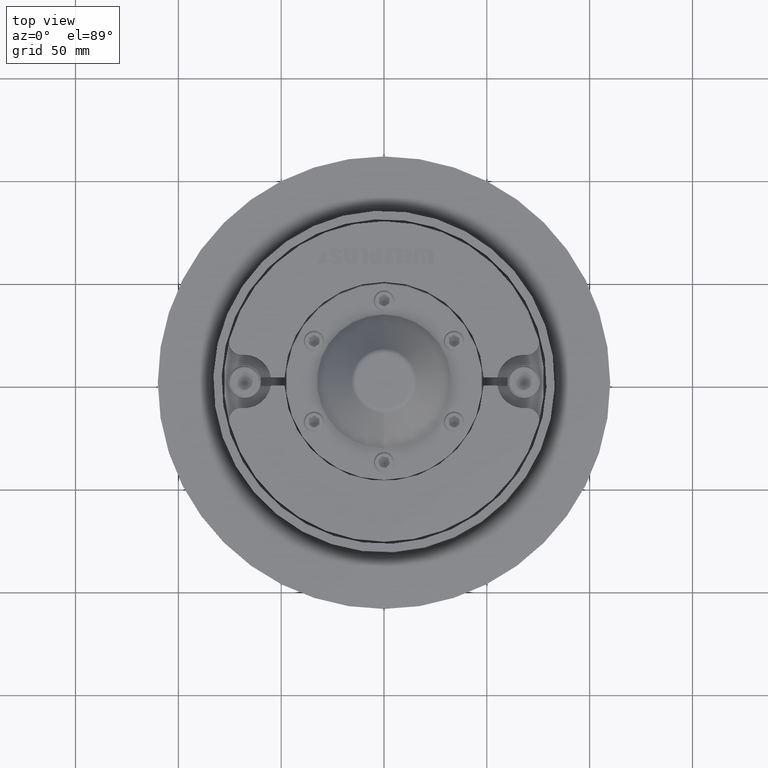
[diagram: clean part render]
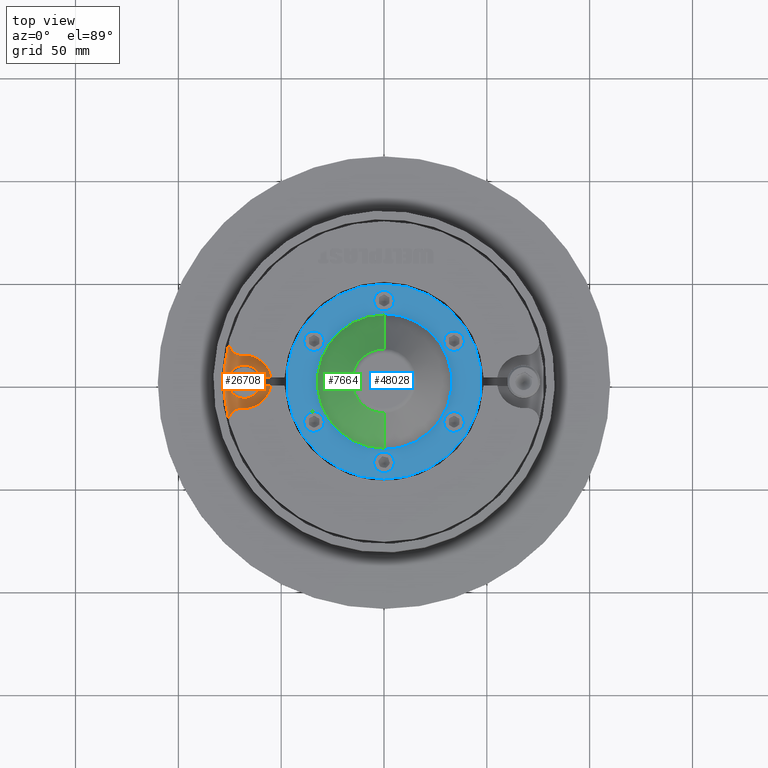
[diagram: same view with three faces highlighted in distinct colors, each labeled with its STEP entity id]
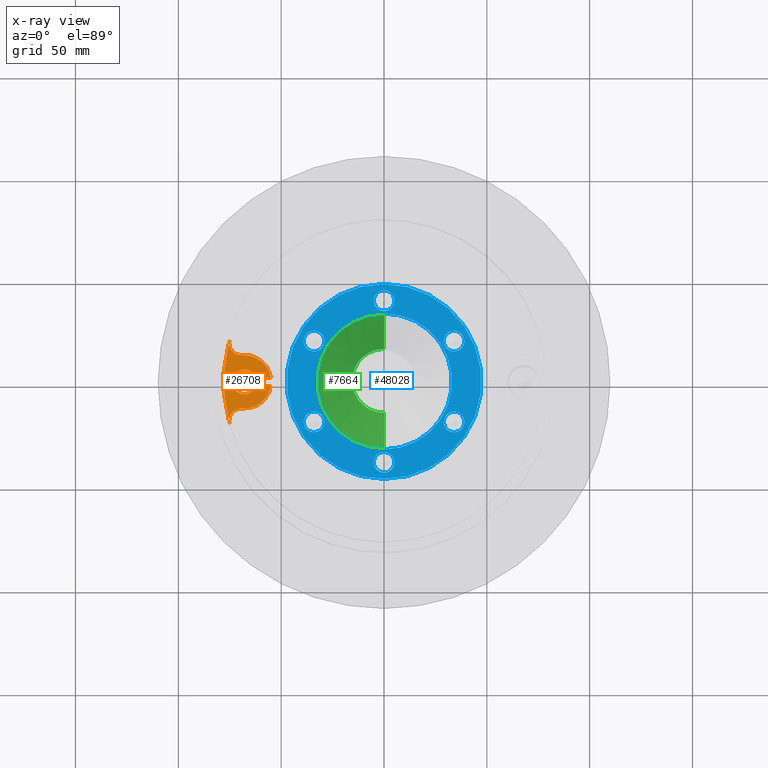
[diagram: x-ray of the same camera — body ghosted, the three highlighted faces saturated]
A machine part, top view with three faces highlighted in distinct colors.
The next image is the same camera in x-ray (body ghosted, the three faces saturated) — at least one of them is partly hidden behind the body in this view.
Their STEP definitions:

[orange] entity #26708 — the highlighted planar face has unit normal (0, -0, 1).
#292 = CARTESIAN_POINT ( 'NONE',  ( 67.90000000000000568, 18.35000000000000497, 0.0000000000000000000 ) ) ;
#1128 = AXIS2_PLACEMENT_3D ( 'NONE', #28800, #1572, #33361 ) ;
#1348 = EDGE_CURVE ( 'NONE', #2910, #29885, #1796, .T. ) ;
#1572 = DIRECTION ( 'NONE',  ( -0.0000000000000000000, -1.000000000000000000, -0.0000000000000000000 ) ) ;
#1749 = CARTESIAN_POINT ( 'NONE',  ( 67.90000000000000568, 18.35000000000000497, -2.000000000000000000 ) ) ;
#1796 = CIRCLE ( 'NONE', #26808, 6.000000000000032863 ) ;
#2385 = LINE ( 'NONE', #39057, #13101 ) ;
#2910 = VERTEX_POINT ( 'NONE', #50116 ) ;
#3080 = CARTESIAN_POINT ( 'NONE',  ( 69.35949926362297902, 18.35000000000000497, -18.94386079708896276 ) ) ;
#3546 = CARTESIAN_POINT ( 'NONE',  ( 68.89860475932098893, 18.35000000000000497, -12.96158896642929115 ) ) ;
#4403 = CIRCLE ( 'NONE', #20583, 5.999999999999998224 ) ;
#4703 = CARTESIAN_POINT ( 'NONE',  ( 75.14749642053169509, 18.35000000000000497, 20.52471148947469004 ) ) ;
#4845 = DIRECTION ( 'NONE',  ( 0.0000000000000000000, 0.0000000000000000000, 1.000000000000000000 ) ) ;
#5160 = DIRECTION ( 'NONE',  ( 0.0000000000000000000, -0.0000000000000000000, 1.000000000000000000 ) ) ;
#5340 = DIRECTION ( 'NONE',  ( -0.0000000000000000000, -1.000000000000000000, -0.0000000000000000000 ) ) ;
#6672 = DIRECTION ( 'NONE',  ( 0.0000000000000000000, 1.000000000000000000, 0.0000000000000000000 ) ) ;
#6848 = VERTEX_POINT ( 'NONE', #33226 ) ;
#7443 = DIRECTION ( 'NONE',  ( 1.000000000000000000, -0.0000000000000000000, 0.0000000000000000000 ) ) ;
#7525 = EDGE_CURVE ( 'NONE', #23380, #29885, #2385, .T. ) ;
#7635 = DIRECTION ( 'NONE',  ( 0.0000000000000000000, 0.0000000000000000000, 1.000000000000000000 ) ) ;
#8280 = FACE_OUTER_BOUND ( 'NONE', #24649, .T. ) ;
#8363 = AXIS2_PLACEMENT_3D ( 'NONE', #13067, #44872, #17649 ) ;
#8428 = EDGE_CURVE ( 'NONE', #23380, #35821, #47877, .T. ) ;
#8636 = ORIENTED_EDGE ( 'NONE', *, *, #49489, .T. ) ;
#9633 = VERTEX_POINT ( 'NONE', #3546 ) ;
#10678 = ORIENTED_EDGE ( 'NONE', *, *, #42748, .F. ) ;
#11018 = AXIS2_PLACEMENT_3D ( 'NONE', #36379, #32403, #5160 ) ;
#11193 = VERTEX_POINT ( 'NONE', #37087 ) ;
#12293 = ORIENTED_EDGE ( 'NONE', *, *, #1348, .T. ) ;
#12511 = EDGE_CURVE ( 'NONE', #11193, #26745, #54796, .T. ) ;
#12993 = CIRCLE ( 'NONE', #8363, 13.00000000000000178 ) ;
#13017 = CARTESIAN_POINT ( 'NONE',  ( 67.90000000000000568, 18.35000000000000497, 0.0000000000000000000 ) ) ;
#13067 = CARTESIAN_POINT ( 'NONE',  ( 67.90000000000000568, 18.35000000000000497, 0.0000000000000000000 ) ) ;
#13101 = VECTOR ( 'NONE', #7443, 1000.000000000000000 ) ;
#13799 = ORIENTED_EDGE ( 'NONE', *, *, #54608, .T. ) ;
#14097 = CARTESIAN_POINT ( 'NONE',  ( 0.0000000000000000000, 18.35000000000000497, 0.0000000000000000000 ) ) ;
#15882 = CARTESIAN_POINT ( 'NONE',  ( 69.35949926362297902, 18.35000000000000497, 18.94386079708896276 ) ) ;
#17112 = CIRCLE ( 'NONE', #47034, 77.89999999999999147 ) ;
#17594 = DIRECTION ( 'NONE',  ( 0.0000000000000000000, 0.0000000000000000000, 1.000000000000000000 ) ) ;
#17649 = DIRECTION ( 'NONE',  ( 0.0000000000000000000, 0.0000000000000000000, 1.000000000000000000 ) ) ;
#17821 = AXIS2_PLACEMENT_3D ( 'NONE', #13017, #44820, #17594 ) ;
#18689 = DIRECTION ( 'NONE',  ( -1.776356839400250465E-15, 0.0000000000000000000, 1.000000000000000000 ) ) ;
#20460 = DIRECTION ( 'NONE',  ( -2.312964634635743450E-15, 0.0000000000000000000, 1.000000000000000000 ) ) ;
#20583 = AXIS2_PLACEMENT_3D ( 'NONE', #15882, #47682, #20460 ) ;
#20898 = CIRCLE ( 'NONE', #28972, 6.000000000000000000 ) ;
#21064 = VECTOR ( 'NONE', #33541, 1000.000000000000000 ) ;
#23380 = VERTEX_POINT ( 'NONE', #37055 ) ;
#24649 = EDGE_LOOP ( 'NONE', ( #33279, #29162, #38054, #12293, #45734, #52729, #13799, #50387, #10678, #8636, #44342 ) ) ;
#24976 = CARTESIAN_POINT ( 'NONE',  ( 68.89860475932098893, 18.35000000000000497, 12.96158896642929115 ) ) ;
#25229 = CARTESIAN_POINT ( 'NONE',  ( 67.90000000000000568, 18.35000000000000497, 13.00000000000000178 ) ) ;
#25434 = VERTEX_POINT ( 'NONE', #4703 ) ;
#26708 = ADVANCED_FACE ( 'NONE', ( #8280 ), #27853, .T. ) ;
#26745 = VERTEX_POINT ( 'NONE', #41589 ) ;
#26808 = AXIS2_PLACEMENT_3D ( 'NONE', #32587, #5340, #37150 ) ;
#27853 = PLANE ( 'NONE',  #11018 ) ;
#28800 = CARTESIAN_POINT ( 'NONE',  ( 67.90000000000000568, 18.35000000000000497, 0.0000000000000000000 ) ) ;
#28972 = AXIS2_PLACEMENT_3D ( 'NONE', #3080, #34885, #7635 ) ;
#29162 = ORIENTED_EDGE ( 'NONE', *, *, #12511, .T. ) ;
#29885 = VERTEX_POINT ( 'NONE', #53259 ) ;
#32087 = DIRECTION ( 'NONE',  ( -0.0000000000000000000, -1.000000000000000000, -0.0000000000000000000 ) ) ;
#32403 = DIRECTION ( 'NONE',  ( 0.0000000000000000000, 1.000000000000000000, 0.0000000000000000000 ) ) ;
#32587 = CARTESIAN_POINT ( 'NONE',  ( 67.90000000000000568, 18.35000000000000497, 0.0000000000000000000 ) ) ;
#33108 = LINE ( 'NONE', #1749, #21064 ) ;
#33226 = CARTESIAN_POINT ( 'NONE',  ( 75.14749642053169509, 18.35000000000000497, -20.52471148947469004 ) ) ;
#33279 = ORIENTED_EDGE ( 'NONE', *, *, #47244, .F. ) ;
#33361 = DIRECTION ( 'NONE',  ( 0.0000000000000000000, 0.0000000000000000000, 1.000000000000000000 ) ) ;
#33541 = DIRECTION ( 'NONE',  ( -1.000000000000000000, 0.0000000000000000000, 0.0000000000000000000 ) ) ;
#33923 = CARTESIAN_POINT ( 'NONE',  ( 67.90000000000000568, 18.35000000000000497, 0.0000000000000000000 ) ) ;
#34885 = DIRECTION ( 'NONE',  ( -0.0000000000000000000, -1.000000000000000000, -0.0000000000000000000 ) ) ;
#35821 = VERTEX_POINT ( 'NONE', #25229 ) ;
#36379 = CARTESIAN_POINT ( 'NONE',  ( 67.90000000000000568, 18.35000000000000497, 0.0000000000000000000 ) ) ;
#37055 = CARTESIAN_POINT ( 'NONE',  ( 55.05476742133487278, 18.35000000000000497, 2.000000000000000000 ) ) ;
#37087 = CARTESIAN_POINT ( 'NONE',  ( 62.24314575050758691, 18.35000000000000497, -2.000000000000000000 ) ) ;
#37150 = DIRECTION ( 'NONE',  ( 0.0000000000000000000, 0.0000000000000000000, 1.000000000000000000 ) ) ;
#37385 = EDGE_CURVE ( 'NONE', #9633, #54203, #12993, .T. ) ;
#38054 = ORIENTED_EDGE ( 'NONE', *, *, #48070, .T. ) ;
#38492 = DIRECTION ( 'NONE',  ( 0.0000000000000000000, 0.0000000000000000000, 1.000000000000000000 ) ) ;
#39057 = CARTESIAN_POINT ( 'NONE',  ( 67.90000000000000568, 18.35000000000000497, 2.000000000000000000 ) ) ;
#39725 = VERTEX_POINT ( 'NONE', #24976 ) ;
#41589 = CARTESIAN_POINT ( 'NONE',  ( 67.90000000000000568, 18.35000000000000497, -6.000000000000032863 ) ) ;
#42315 = CIRCLE ( 'NONE', #1128, 6.000000000000032863 ) ;
#42748 = EDGE_CURVE ( 'NONE', #6848, #25434, #17112, .T. ) ;
#44102 = CARTESIAN_POINT ( 'NONE',  ( 55.05476742133487278, 18.35000000000000497, -2.000000000000000000 ) ) ;
#44342 = ORIENTED_EDGE ( 'NONE', *, *, #37385, .T. ) ;
#44820 = DIRECTION ( 'NONE',  ( 0.0000000000000000000, 1.000000000000000000, 0.0000000000000000000 ) ) ;
#44865 = AXIS2_PLACEMENT_3D ( 'NONE', #292, #32087, #4845 ) ;
#44872 = DIRECTION ( 'NONE',  ( 0.0000000000000000000, 1.000000000000000000, 0.0000000000000000000 ) ) ;
#45734 = ORIENTED_EDGE ( 'NONE', *, *, #7525, .F. ) ;
#45885 = DIRECTION ( 'NONE',  ( -0.0000000000000000000, -1.000000000000000000, -0.0000000000000000000 ) ) ;
#47034 = AXIS2_PLACEMENT_3D ( 'NONE', #14097, #45885, #18689 ) ;
#47244 = EDGE_CURVE ( 'NONE', #11193, #54203, #33108, .T. ) ;
#47682 = DIRECTION ( 'NONE',  ( -0.0000000000000000000, -1.000000000000000000, -0.0000000000000000000 ) ) ;
#47877 = CIRCLE ( 'NONE', #51547, 13.00000000000000178 ) ;
#48070 = EDGE_CURVE ( 'NONE', #26745, #2910, #42315, .T. ) ;
#49489 = EDGE_CURVE ( 'NONE', #6848, #9633, #20898, .T. ) ;
#50116 = CARTESIAN_POINT ( 'NONE',  ( 67.90000000000000568, 18.35000000000000497, 6.000000000000032863 ) ) ;
#50387 = ORIENTED_EDGE ( 'NONE', *, *, #57688, .T. ) ;
#51547 = AXIS2_PLACEMENT_3D ( 'NONE', #33923, #6672, #38492 ) ;
#52729 = ORIENTED_EDGE ( 'NONE', *, *, #8428, .T. ) ;
#53259 = CARTESIAN_POINT ( 'NONE',  ( 62.24314575050758691, 18.35000000000000497, 2.000000000000000000 ) ) ;
#54203 = VERTEX_POINT ( 'NONE', #44102 ) ;
#54608 = EDGE_CURVE ( 'NONE', #35821, #39725, #58686, .T. ) ;
#54796 = CIRCLE ( 'NONE', #44865, 6.000000000000032863 ) ;
#57688 = EDGE_CURVE ( 'NONE', #39725, #25434, #4403, .T. ) ;
#58686 = CIRCLE ( 'NONE', #17821, 13.00000000000000178 ) ;

[blue] entity #48028 — the highlighted planar face has unit normal (0, 0, 1).
#38 = CARTESIAN_POINT ( 'NONE',  ( 19.65876568525860435, -10.02059999999893769, 39.04998492607691674 ) ) ;
#203 = CIRCLE ( 'NONE', #818, 47.39999999999999147 ) ;
#725 = DIRECTION ( 'NONE',  ( 0.0000000000000000000, 0.0000000000000000000, 1.000000000000000000 ) ) ;
#818 = AXIS2_PLACEMENT_3D ( 'NONE', #42063, #14833, #46630 ) ;
#2237 = CARTESIAN_POINT ( 'NONE',  ( 19.65876568525513690, -10.02059999999893769, -39.04998492607592908 ) ) ;
#2489 = EDGE_CURVE ( 'NONE', #43778, #8058, #53698, .T. ) ;
#2773 = EDGE_CURVE ( 'NONE', #57379, #21116, #22375, .T. ) ;
#3622 = CARTESIAN_POINT ( 'NONE',  ( 19.65876568525513690, -10.02059999999893769, -34.04998492607429483 ) ) ;
#3667 = ORIENTED_EDGE ( 'NONE', *, *, #9477, .F. ) ;
#3933 = DIRECTION ( 'NONE',  ( 1.000000000000000000, -3.659754168727441731E-17, 0.0000000000000000000 ) ) ;
#3934 = EDGE_CURVE ( 'NONE', #9517, #39880, #22992, .T. ) ;
#4414 = ORIENTED_EDGE ( 'NONE', *, *, #58740, .F. ) ;
#4446 = AXIS2_PLACEMENT_3D ( 'NONE', #39562, #12349, #44161 ) ;
#5131 = DIRECTION ( 'NONE',  ( 0.0000000000000000000, 1.000000000000000000, 0.0000000000000000000 ) ) ;
#5541 = EDGE_LOOP ( 'NONE', ( #5821, #47547 ) ) ;
#5821 = ORIENTED_EDGE ( 'NONE', *, *, #2773, .F. ) ;
#6201 = EDGE_CURVE ( 'NONE', #43115, #28533, #10690, .T. ) ;
#6835 = CIRCLE ( 'NONE', #11037, 5.000000000001117328 ) ;
#8058 = VERTEX_POINT ( 'NONE', #32779 ) ;
#8182 = DIRECTION ( 'NONE',  ( 0.0000000000000000000, 0.0000000000000000000, 1.000000000000000000 ) ) ;
#8185 = EDGE_CURVE ( 'NONE', #11563, #33935, #42913, .T. ) ;
#8208 = VERTEX_POINT ( 'NONE', #46284 ) ;
#8542 = CARTESIAN_POINT ( 'NONE',  ( 39.31753364822798602, -10.02059999999893769, -5.000000000005910827 ) ) ;
#8868 = FACE_BOUND ( 'NONE', #50440, .T. ) ;
#9172 = CARTESIAN_POINT ( 'NONE',  ( -2.277714244310308212E-06, -10.02059999999893947, 0.0000000000000000000 ) ) ;
#9477 = EDGE_CURVE ( 'NONE', #8058, #43778, #13658, .T. ) ;
#9517 = VERTEX_POINT ( 'NONE', #48508 ) ;
#9733 = ORIENTED_EDGE ( 'NONE', *, *, #58767, .T. ) ;
#9813 = CARTESIAN_POINT ( 'NONE',  ( -47.40000227771423624, -10.02059999999893769, 5.835441997937136278E-15 ) ) ;
#10273 = AXIS2_PLACEMENT_3D ( 'NONE', #51077, #10317, #42145 ) ;
#10303 = FACE_BOUND ( 'NONE', #51095, .T. ) ;
#10317 = DIRECTION ( 'NONE',  ( 2.052230808033235889E-17, 1.000000000000000000, 0.0000000000000000000 ) ) ;
#10690 = CIRCLE ( 'NONE', #18632, 47.39999999999999147 ) ;
#11037 = AXIS2_PLACEMENT_3D ( 'NONE', #47500, #20275, #52089 ) ;
#11563 = VERTEX_POINT ( 'NONE', #12791 ) ;
#11744 = FACE_BOUND ( 'NONE', #21919, .T. ) ;
#12172 = AXIS2_PLACEMENT_3D ( 'NONE', #27043, #58793, #31575 ) ;
#12221 = CARTESIAN_POINT ( 'NONE',  ( 39.31753364822798602, -10.02059999999893769, -2.005340338229189001E-12 ) ) ;
#12349 = DIRECTION ( 'NONE',  ( 0.0000000000000000000, 1.000000000000000000, 0.0000000000000000000 ) ) ;
#12791 = CARTESIAN_POINT ( 'NONE',  ( -19.65877024068708323, -10.02059999999893769, -39.04998492607229110 ) ) ;
#13046 = ORIENTED_EDGE ( 'NONE', *, *, #35536, .F. ) ;
#13658 = CIRCLE ( 'NONE', #43980, 5.000000000004632739 ) ;
#13792 = DIRECTION ( 'NONE',  ( 1.000000000000000000, 0.0000000000000000000, 0.0000000000000000000 ) ) ;
#13830 = DIRECTION ( 'NONE',  ( 0.0000000000000000000, 1.000000000000000000, 0.0000000000000000000 ) ) ;
#14833 = DIRECTION ( 'NONE',  ( -2.052230808033235889E-17, -1.000000000000000000, -0.0000000000000000000 ) ) ;
#15830 = EDGE_CURVE ( 'NONE', #21116, #57379, #6835, .T. ) ;
#16197 = EDGE_LOOP ( 'NONE', ( #9733, #57059 ) ) ;
#16501 = DIRECTION ( 'NONE',  ( 0.0000000000000000000, 1.000000000000000000, 0.0000000000000000000 ) ) ;
#16787 = DIRECTION ( 'NONE',  ( 0.0000000000000000000, 0.0000000000000000000, 1.000000000000000000 ) ) ;
#18149 = CIRCLE ( 'NONE', #12172, 5.000000000001631584 ) ;
#18632 = AXIS2_PLACEMENT_3D ( 'NONE', #58373, #31161, #3933 ) ;
#19449 = ORIENTED_EDGE ( 'NONE', *, *, #39143, .F. ) ;
#19555 = DIRECTION ( 'NONE',  ( 0.0000000000000000000, 1.000000000000000000, 0.0000000000000000000 ) ) ;
#19583 = FACE_OUTER_BOUND ( 'NONE', #57158, .T. ) ;
#20275 = DIRECTION ( 'NONE',  ( 0.0000000000000000000, 1.000000000000000000, 0.0000000000000000000 ) ) ;
#20663 = EDGE_CURVE ( 'NONE', #50469, #8208, #53485, .T. ) ;
#21116 = VERTEX_POINT ( 'NONE', #51695 ) ;
#21268 = CARTESIAN_POINT ( 'NONE',  ( -19.65877024068708323, -10.02059999999893769, -34.04998492607229110 ) ) ;
#21472 = CARTESIAN_POINT ( 'NONE',  ( -19.65877024068708323, -10.02059999999893769, -29.04998492607229110 ) ) ;
#21919 = EDGE_LOOP ( 'NONE', ( #13046, #55419 ) ) ;
#22375 = CIRCLE ( 'NONE', #24194, 5.000000000001117328 ) ;
#22551 = DIRECTION ( 'NONE',  ( 0.0000000000000000000, 1.000000000000000000, 0.0000000000000000000 ) ) ;
#22931 = CIRCLE ( 'NONE', #41211, 5.000000000000000888 ) ;
#22992 = CIRCLE ( 'NONE', #50147, 33.06961356237309957 ) ;
#24194 = AXIS2_PLACEMENT_3D ( 'NONE', #46756, #19555, #51333 ) ;
#24227 = CARTESIAN_POINT ( 'NONE',  ( -2.277714244310308212E-06, -10.02059999999893947, 0.0000000000000000000 ) ) ;
#25842 = DIRECTION ( 'NONE',  ( 0.0000000000000000000, 0.0000000000000000000, 1.000000000000000000 ) ) ;
#25890 = ORIENTED_EDGE ( 'NONE', *, *, #8185, .F. ) ;
#26356 = CARTESIAN_POINT ( 'NONE',  ( 47.39999772228574670, -10.02059999999894124, 0.0000000000000000000 ) ) ;
#27043 = CARTESIAN_POINT ( 'NONE',  ( 19.65876568525513690, -10.02059999999893769, -34.04998492607429483 ) ) ;
#27995 = DIRECTION ( 'NONE',  ( 0.0000000000000000000, 1.000000000000000000, 0.0000000000000000000 ) ) ;
#28533 = VERTEX_POINT ( 'NONE', #26356 ) ;
#28764 = DIRECTION ( 'NONE',  ( 1.000000000000000000, 0.0000000000000000000, 0.0000000000000000000 ) ) ;
#29801 = AXIS2_PLACEMENT_3D ( 'NONE', #12221, #44034, #16787 ) ;
#30008 = ORIENTED_EDGE ( 'NONE', *, *, #43030, .F. ) ;
#30528 = EDGE_CURVE ( 'NONE', #51546, #57370, #51178, .T. ) ;
#31161 = DIRECTION ( 'NONE',  ( -2.052230808033235889E-17, -1.000000000000000000, -0.0000000000000000000 ) ) ;
#31375 = ORIENTED_EDGE ( 'NONE', *, *, #54823, .F. ) ;
#31575 = DIRECTION ( 'NONE',  ( 0.0000000000000000000, 0.0000000000000000000, 1.000000000000000000 ) ) ;
#31614 = FACE_BOUND ( 'NONE', #16197, .T. ) ;
#32373 = CARTESIAN_POINT ( 'NONE',  ( 19.65876568525860435, -10.02059999999893769, 34.04998492607228400 ) ) ;
#32376 = AXIS2_PLACEMENT_3D ( 'NONE', #49774, #22551, #54364 ) ;
#32779 = CARTESIAN_POINT ( 'NONE',  ( 19.65876568525860435, -10.02059999999893769, 29.04998492606765126 ) ) ;
#33402 = CARTESIAN_POINT ( 'NONE',  ( 39.31753364822798602, -10.02059999999893769, 5.000000000001900702 ) ) ;
#33935 = VERTEX_POINT ( 'NONE', #21472 ) ;
#34316 = CIRCLE ( 'NONE', #44625, 33.06961356237309957 ) ;
#34801 = ORIENTED_EDGE ( 'NONE', *, *, #58307, .F. ) ;
#35072 = CARTESIAN_POINT ( 'NONE',  ( 33.06961128465884769, -10.02059999999893947, 0.0000000000000000000 ) ) ;
#35420 = DIRECTION ( 'NONE',  ( 0.0000000000000000000, 1.000000000000000000, 0.0000000000000000000 ) ) ;
#35536 = EDGE_CURVE ( 'NONE', #8208, #50469, #18149, .T. ) ;
#35727 = VERTEX_POINT ( 'NONE', #51856 ) ;
#36223 = ORIENTED_EDGE ( 'NONE', *, *, #30528, .F. ) ;
#36933 = DIRECTION ( 'NONE',  ( 0.0000000000000000000, 0.0000000000000000000, 1.000000000000000000 ) ) ;
#39143 = EDGE_CURVE ( 'NONE', #33935, #11563, #22931, .T. ) ;
#39271 = VERTEX_POINT ( 'NONE', #58176 ) ;
#39488 = CIRCLE ( 'NONE', #4446, 5.000000000003906209 ) ;
#39562 = CARTESIAN_POINT ( 'NONE',  ( 39.31753364822798602, -10.02059999999893769, -2.005340338229189001E-12 ) ) ;
#39880 = VERTEX_POINT ( 'NONE', #35072 ) ;
#41028 = DIRECTION ( 'NONE',  ( -2.052230808033235889E-17, -1.000000000000000000, -0.0000000000000000000 ) ) ;
#41063 = CARTESIAN_POINT ( 'NONE',  ( -19.65877024068360868, -10.02059999999893769, 34.04998492607428773 ) ) ;
#41211 = AXIS2_PLACEMENT_3D ( 'NONE', #21268, #53078, #25842 ) ;
#42063 = CARTESIAN_POINT ( 'NONE',  ( -2.277714244310308212E-06, -10.02059999999893947, 0.0000000000000000000 ) ) ;
#42145 = DIRECTION ( 'NONE',  ( -1.000000000000000000, 2.052230808033235889E-17, 0.0000000000000000000 ) ) ;
#42854 = AXIS2_PLACEMENT_3D ( 'NONE', #41063, #13830, #45641 ) ;
#42913 = CIRCLE ( 'NONE', #46579, 5.000000000000000888 ) ;
#43030 = EDGE_CURVE ( 'NONE', #39271, #35727, #55476, .T. ) ;
#43115 = VERTEX_POINT ( 'NONE', #9813 ) ;
#43612 = AXIS2_PLACEMENT_3D ( 'NONE', #32373, #5131, #36933 ) ;
#43741 = CARTESIAN_POINT ( 'NONE',  ( 19.65876568525860435, -10.02059999999893769, 34.04998492607228400 ) ) ;
#43754 = FACE_BOUND ( 'NONE', #55595, .T. ) ;
#43778 = VERTEX_POINT ( 'NONE', #38 ) ;
#43980 = AXIS2_PLACEMENT_3D ( 'NONE', #43741, #16501, #48306 ) ;
#44034 = DIRECTION ( 'NONE',  ( 0.0000000000000000000, 1.000000000000000000, 0.0000000000000000000 ) ) ;
#44161 = DIRECTION ( 'NONE',  ( 0.0000000000000000000, 0.0000000000000000000, 1.000000000000000000 ) ) ;
#44447 = AXIS2_PLACEMENT_3D ( 'NONE', #3622, #35420, #8182 ) ;
#44625 = AXIS2_PLACEMENT_3D ( 'NONE', #9172, #41028, #13792 ) ;
#45188 = FACE_BOUND ( 'NONE', #5541, .T. ) ;
#45542 = CARTESIAN_POINT ( 'NONE',  ( -39.31753820365648266, -10.02059999999893769, 5.000000000003143263 ) ) ;
#45641 = DIRECTION ( 'NONE',  ( 0.0000000000000000000, 0.0000000000000000000, 1.000000000000000000 ) ) ;
#46284 = CARTESIAN_POINT ( 'NONE',  ( 19.65876568525513690, -10.02059999999893769, -29.04998492607266058 ) ) ;
#46433 = CIRCLE ( 'NONE', #32376, 5.000000000003196554 ) ;
#46579 = AXIS2_PLACEMENT_3D ( 'NONE', #55236, #27995, #725 ) ;
#46630 = DIRECTION ( 'NONE',  ( 1.000000000000000000, -3.659754168727441731E-17, 0.0000000000000000000 ) ) ;
#46756 = CARTESIAN_POINT ( 'NONE',  ( -39.31753820365648266, -10.02059999999893769, 2.026157019940910686E-12 ) ) ;
#47500 = CARTESIAN_POINT ( 'NONE',  ( -39.31753820365648266, -10.02059999999893769, 2.026157019940910686E-12 ) ) ;
#47547 = ORIENTED_EDGE ( 'NONE', *, *, #15830, .F. ) ;
#48028 = ADVANCED_FACE ( 'NONE', ( #45188, #8868, #10303, #55823, #11744, #43754, #31614, #19583 ), #55652, .T. ) ;
#48306 = DIRECTION ( 'NONE',  ( 0.0000000000000000000, 0.0000000000000000000, 1.000000000000000000 ) ) ;
#48508 = CARTESIAN_POINT ( 'NONE',  ( -33.06961584008734434, -10.02059999999893947, 4.049859639820011096E-15 ) ) ;
#49774 = CARTESIAN_POINT ( 'NONE',  ( -19.65877024068360868, -10.02059999999893769, 34.04998492607428773 ) ) ;
#50147 = AXIS2_PLACEMENT_3D ( 'NONE', #24227, #56000, #28764 ) ;
#50440 = EDGE_LOOP ( 'NONE', ( #30008, #4414 ) ) ;
#50469 = VERTEX_POINT ( 'NONE', #2237 ) ;
#51077 = CARTESIAN_POINT ( 'NONE',  ( 47.39999772228574670, -10.02059999999893947, 0.0000000000000000000 ) ) ;
#51095 = EDGE_LOOP ( 'NONE', ( #57835, #3667 ) ) ;
#51178 = CIRCLE ( 'NONE', #29801, 5.000000000003906209 ) ;
#51333 = DIRECTION ( 'NONE',  ( 0.0000000000000000000, 0.0000000000000000000, 1.000000000000000000 ) ) ;
#51546 = VERTEX_POINT ( 'NONE', #33402 ) ;
#51695 = CARTESIAN_POINT ( 'NONE',  ( -39.31753820365648266, -10.02059999999893769, -4.999999999999091393 ) ) ;
#51856 = CARTESIAN_POINT ( 'NONE',  ( -19.65877024068360868, -10.02059999999893769, 29.04998492607109029 ) ) ;
#52007 = ORIENTED_EDGE ( 'NONE', *, *, #6201, .F. ) ;
#52089 = DIRECTION ( 'NONE',  ( 0.0000000000000000000, 0.0000000000000000000, 1.000000000000000000 ) ) ;
#53078 = DIRECTION ( 'NONE',  ( 0.0000000000000000000, 1.000000000000000000, 0.0000000000000000000 ) ) ;
#53485 = CIRCLE ( 'NONE', #44447, 5.000000000001631584 ) ;
#53698 = CIRCLE ( 'NONE', #43612, 5.000000000004632739 ) ;
#54364 = DIRECTION ( 'NONE',  ( 0.0000000000000000000, 0.0000000000000000000, 1.000000000000000000 ) ) ;
#54823 = EDGE_CURVE ( 'NONE', #57370, #51546, #39488, .T. ) ;
#55236 = CARTESIAN_POINT ( 'NONE',  ( -19.65877024068708323, -10.02059999999893769, -34.04998492607229110 ) ) ;
#55419 = ORIENTED_EDGE ( 'NONE', *, *, #20663, .F. ) ;
#55476 = CIRCLE ( 'NONE', #42854, 5.000000000003196554 ) ;
#55595 = EDGE_LOOP ( 'NONE', ( #19449, #25890 ) ) ;
#55652 = PLANE ( 'NONE',  #10273 ) ;
#55823 = FACE_BOUND ( 'NONE', #57934, .T. ) ;
#56000 = DIRECTION ( 'NONE',  ( -2.052230808033235889E-17, -1.000000000000000000, -0.0000000000000000000 ) ) ;
#57059 = ORIENTED_EDGE ( 'NONE', *, *, #3934, .T. ) ;
#57158 = EDGE_LOOP ( 'NONE', ( #34801, #52007 ) ) ;
#57370 = VERTEX_POINT ( 'NONE', #8542 ) ;
#57379 = VERTEX_POINT ( 'NONE', #45542 ) ;
#57835 = ORIENTED_EDGE ( 'NONE', *, *, #2489, .F. ) ;
#57934 = EDGE_LOOP ( 'NONE', ( #36223, #31375 ) ) ;
#58176 = CARTESIAN_POINT ( 'NONE',  ( -19.65877024068360868, -10.02059999999893769, 39.04998492607747806 ) ) ;
#58307 = EDGE_CURVE ( 'NONE', #28533, #43115, #203, .T. ) ;
#58373 = CARTESIAN_POINT ( 'NONE',  ( -2.277714244310308212E-06, -10.02059999999893947, 0.0000000000000000000 ) ) ;
#58740 = EDGE_CURVE ( 'NONE', #35727, #39271, #46433, .T. ) ;
#58767 = EDGE_CURVE ( 'NONE', #39880, #9517, #34316, .T. ) ;
#58793 = DIRECTION ( 'NONE',  ( 0.0000000000000000000, 1.000000000000000000, 0.0000000000000000000 ) ) ;

[green] entity #7664 — the highlighted conical surface has half-angle 45 deg.
#3018 = AXIS2_PLACEMENT_3D ( 'NONE', #46374, #19161, #50942 ) ;
#4008 = ORIENTED_EDGE ( 'NONE', *, *, #39794, .F. ) ;
#4659 = ORIENTED_EDGE ( 'NONE', *, *, #15427, .T. ) ;
#7664 = ADVANCED_FACE ( 'NONE', ( #11654 ), #43663, .T. ) ;
#8106 = VERTEX_POINT ( 'NONE', #33176 ) ;
#8237 = DIRECTION ( 'NONE',  ( 1.000000000000000000, 0.0000000000000000000, 0.0000000000000000000 ) ) ;
#8955 = LINE ( 'NONE', #52856, #55916 ) ;
#9006 = CIRCLE ( 'NONE', #3018, 15.53407965644037780 ) ;
#10481 = ORIENTED_EDGE ( 'NONE', *, *, #53856, .F. ) ;
#10683 = VERTEX_POINT ( 'NONE', #33980 ) ;
#11654 = FACE_OUTER_BOUND ( 'NONE', #55982, .T. ) ;
#11834 = CARTESIAN_POINT ( 'NONE',  ( -2.277714244304297243E-06, -9.727706781185487372, 0.0000000000000000000 ) ) ;
#13302 = LINE ( 'NONE', #45023, #35998 ) ;
#15076 = CIRCLE ( 'NONE', #23721, 32.36250678118655344 ) ;
#15427 = EDGE_CURVE ( 'NONE', #10683, #31703, #9006, .T. ) ;
#16412 = DIRECTION ( 'NONE',  ( 1.000000000000000000, 0.0000000000000000000, 0.0000000000000000000 ) ) ;
#17430 = DIRECTION ( 'NONE',  ( -2.052230808033235889E-17, -1.000000000000000000, -0.0000000000000000000 ) ) ;
#19161 = DIRECTION ( 'NONE',  ( -2.052230808033235889E-17, -1.000000000000000000, -0.0000000000000000000 ) ) ;
#23340 = AXIS2_PLACEMENT_3D ( 'NONE', #30703, #17430, #8237 ) ;
#23721 = AXIS2_PLACEMENT_3D ( 'NONE', #11834, #43657, #16412 ) ;
#25614 = DIRECTION ( 'NONE',  ( -0.7071067811865473507, -0.7071067811865477948, 8.659560562354931626E-17 ) ) ;
#29659 = CARTESIAN_POINT ( 'NONE',  ( 32.36250450347230867, -9.727706781185487372, 0.0000000000000000000 ) ) ;
#30703 = CARTESIAN_POINT ( 'NONE',  ( -2.277714244304297243E-06, -9.727706781185487372, 0.0000000000000000000 ) ) ;
#31703 = VERTEX_POINT ( 'NONE', #34081 ) ;
#33176 = CARTESIAN_POINT ( 'NONE',  ( -32.36250905890079821, -9.727706781185487372, 4.006561837008236962E-15 ) ) ;
#33980 = CARTESIAN_POINT ( 'NONE',  ( -15.53408193415462080, 7.100720343560696257, 1.902376092895972157E-15 ) ) ;
#34081 = CARTESIAN_POINT ( 'NONE',  ( 15.53407737872613303, 7.100720343560696257, 0.0000000000000000000 ) ) ;
#35998 = VECTOR ( 'NONE', #49587, 999.9999999999998863 ) ;
#39794 = EDGE_CURVE ( 'NONE', #8106, #53505, #15076, .T. ) ;
#43657 = DIRECTION ( 'NONE',  ( -2.052230808033235889E-17, -1.000000000000000000, -0.0000000000000000000 ) ) ;
#43663 = CONICAL_SURFACE ( 'NONE', #23340, 32.36250678118655344, 0.7853981633974480570 ) ;
#45023 = CARTESIAN_POINT ( 'NONE',  ( 32.36250450347230867, -9.727706781185487372, 0.0000000000000000000 ) ) ;
#46374 = CARTESIAN_POINT ( 'NONE',  ( -2.277714243958939041E-06, 7.100720343560696257, 0.0000000000000000000 ) ) ;
#46395 = EDGE_CURVE ( 'NONE', #31703, #53505, #13302, .T. ) ;
#49587 = DIRECTION ( 'NONE',  ( 0.7071067811865473507, -0.7071067811865477948, 0.0000000000000000000 ) ) ;
#49997 = ORIENTED_EDGE ( 'NONE', *, *, #46395, .T. ) ;
#50942 = DIRECTION ( 'NONE',  ( 1.000000000000000000, 0.0000000000000000000, 0.0000000000000000000 ) ) ;
#52856 = CARTESIAN_POINT ( 'NONE',  ( -32.36250905890079821, -9.727706781185487372, 3.963264034196462828E-15 ) ) ;
#53505 = VERTEX_POINT ( 'NONE', #29659 ) ;
#53856 = EDGE_CURVE ( 'NONE', #10683, #8106, #8955, .T. ) ;
#55916 = VECTOR ( 'NONE', #25614, 999.9999999999998863 ) ;
#55982 = EDGE_LOOP ( 'NONE', ( #10481, #4659, #49997, #4008 ) ) ;